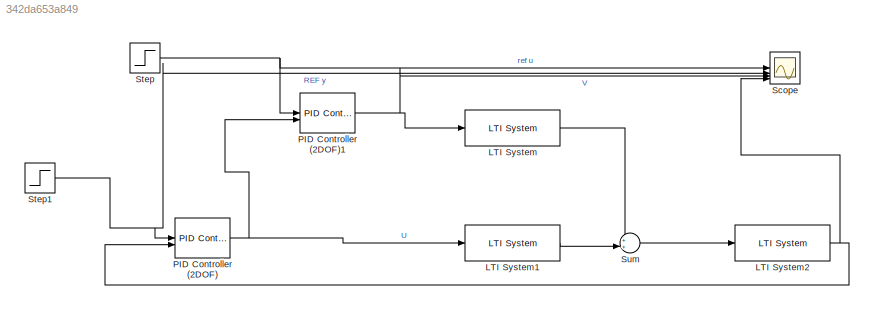
MODEL slx_342da653a849
KIND model
CONFIG AbsTol = auto
CONFIG EnableMultiTasking = off
CONFIG FixedStep = auto
CONFIG MaxStep = auto
CONFIG MinStep = auto
CONFIG RelTol = 1e-3
CONFIG SampleTimeConstraint = Unconstrained
CONFIG SolverName = VariableStepAuto
CONFIG StartTime = 0.0
CONFIG StopTime = 300
BLOCK [Reference] LTI System  REF=cstblocks/LTI System
  SourceBlock = cstblocks/LTI System
  SourceType = LTI Block
BLOCK [Reference] LTI System1  REF=cstblocks/LTI System
  SourceBlock = cstblocks/LTI System
  SourceType = LTI Block
BLOCK [Reference] LTI System2  REF=cstblocks/LTI System
  SourceBlock = cstblocks/LTI System
  SourceType = LTI Block
BLOCK [Reference] PID Controller (2DOF)  REF=slpidlib/PID Controller (2DOF)
  LibrarySourceBlock = simulink/Continuous/PID Controller (2DOF)
  SourceBlock = slpidlib/PID Controller (2DOF)
  SourceType = PID 2dof
BLOCK [Reference] PID Controller (2DOF)1  REF=slpidlib/PID Controller (2DOF)
  LibrarySourceBlock = simulink/Continuous/PID Controller (2DOF)
  SourceBlock = slpidlib/PID Controller (2DOF)
  SourceType = PID 2dof
BLOCK [Scope] Scope
  Floating = off
  NumInputPorts = 5
  ScopeSpecificationString = Simulink.scopes.TimeScopeBlockCfg('CurrentConfiguration', extmgr.ConfigurationSet(extmgr.Configuration('Core','General UI',true),extmgr.Configuration('Core','Source UI',true),extmgr.Configuration('Sources','WiredSimulink',true),extmgr.Configuration('Visuals','Time Domain',true,'SerializedDisplays',{struct('MinYLimReal','-3.51021','MaxYLimReal','-3.43054','YLabelReal','','MinYLimMag','0.00000','Max...<+1412ch>
BLOCK [Step] Step
  After = 7.6
  SampleTime = 0
  Time = 100
BLOCK [Step] Step1
  After = 6.5
  SampleTime = 0
BLOCK [Sum] Sum
  Inputs = ++|
LINE LTI System1:1 -> Sum:2
NET LTI System2:1 -> PID Controller (2DOF):2, Scope:5
LINE LTI System:1 -> Sum:1
NET PID Controller (2DOF)1:1 -> LTI System:1, Scope:3
NET PID Controller (2DOF):1 -> LTI System1:1, PID Controller (2DOF)1:2
NET Step1:1 -> PID Controller (2DOF):1, Scope:2
NET Step:1 -> PID Controller (2DOF)1:1, Scope:1
LINE Sum:1 -> LTI System2:1
note: NET lines group one-source signal fan-out (src -> all destinations, sorted); 1:1 wires keep LINE
